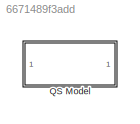
MODEL slx_6671489f3add
KIND library
CONFIG AbsTol = auto
CONFIG FixedStep = auto
CONFIG MaxStep = auto
CONFIG MinStep = auto
CONFIG RelTol = 1e-3
CONFIG SampleTimeConstraint = Unconstrained
CONFIG Solver = ode45
CONFIG SolverMode = Auto
CONFIG SolverName = ode45
CONFIG StartTime = 0.0
CONFIG StopTime = 10.0
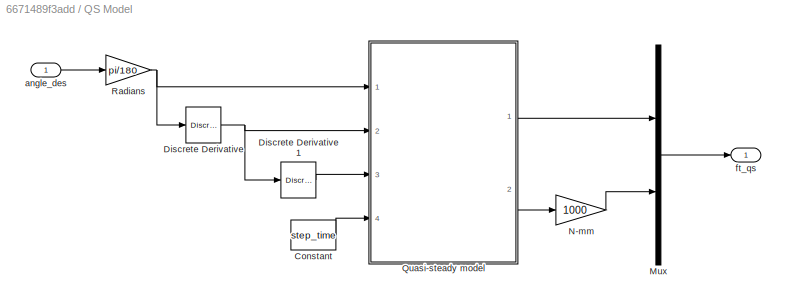
BLOCK [SubSystem] QS Model
  Ports = [1, 1]
  RequestExecContextInheritance = off
  Variant = off
BLOCK [Constant] QS Model/Constant
  Value = step_time
BLOCK [Reference] QS Model/Discrete Derivative  REF=simulink/Discrete/Discrete Derivative
  Ports = [1, 1]
  SourceBlock = simulink/Discrete/Discrete Derivative
  SourceType = Discrete Derivative
BLOCK [Reference] QS Model/Discrete Derivative1  REF=simulink/Discrete/Discrete Derivative
  Ports = [1, 1]
  SourceBlock = simulink/Discrete/Discrete Derivative
  SourceType = Discrete Derivative
BLOCK [Mux] QS Model/Mux
  DisplayOption = bar
  Inputs = 2
  Ports = [2, 1]
BLOCK [Gain] QS Model/N-mm
  Gain = 1000
  OutDataTypeStr = Inherit: Inherit via internal rule
  ParamDataTypeStr = Inherit: Inherit via internal rule
  SaturateOnIntegerOverflow = off
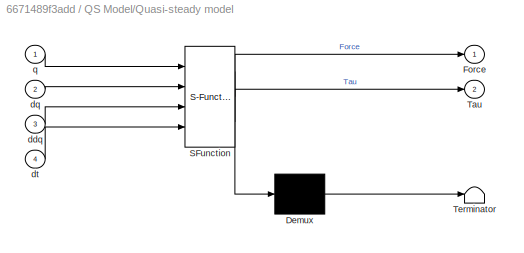
BLOCK [SubSystem] QS Model/Quasi-steady model
  ErrorFcn = Stateflow.Translate.translate
  PermitHierarchicalResolution = ExplicitOnly
  Ports = [4, 2]
  RequestExecContextInheritance = off
  SFBlockType = MATLAB Function
  TreatAsAtomicUnit = on
  Variant = off
BLOCK [Demux] QS Model/Quasi-steady model/ Demux 
  Outputs = 1
  Ports = [1, 1]
BLOCK [S-Function] QS Model/Quasi-steady model/ SFunction 
  EnableBusSupport = on
  FunctionName = sf_sfun
  PortCounts = [4 3]
  Ports = [4, 3]
  SFunctionDeploymentMode = off
  Tag = Stateflow S-Function qs_model 9
BLOCK [Terminator] QS Model/Quasi-steady model/ Terminator 
BLOCK [Outport] QS Model/Quasi-steady model/Force
  IconDisplay = Port number
BLOCK [Outport] QS Model/Quasi-steady model/Tau
  IconDisplay = Port number
  Port = 2
BLOCK [Inport] QS Model/Quasi-steady model/ddq
  IconDisplay = Port number
  Port = 3
BLOCK [Inport] QS Model/Quasi-steady model/dq
  IconDisplay = Port number
  Port = 2
BLOCK [Inport] QS Model/Quasi-steady model/dt
  IconDisplay = Port number
  Port = 4
BLOCK [Inport] QS Model/Quasi-steady model/q
  IconDisplay = Port number
BLOCK [Gain] QS Model/Radians
  Gain = pi/180
  OutDataTypeStr = Inherit: Inherit via internal rule
  ParamDataTypeStr = Inherit: Inherit via internal rule
  SaturateOnIntegerOverflow = off
BLOCK [Inport] QS Model/angle_des
  IconDisplay = Port number
  PortDimensions = 3
BLOCK [Outport] QS Model/ft_qs
  IconDisplay = Port number
LINE QS Model/Constant:1 -> QS Model/Quasi-steady model:4
LINE QS Model/Discrete Derivative1:1 -> QS Model/Quasi-steady model:3
NET QS Model/Discrete Derivative:1 -> QS Model/Discrete Derivative1:1, QS Model/Quasi-steady model:2
LINE QS Model/Mux:1 -> QS Model/ft_qs:1
LINE QS Model/N-mm:1 -> QS Model/Mux:2
LINE QS Model/Quasi-steady model:1 -> QS Model/Mux:1
LINE QS Model/Quasi-steady model:2 -> QS Model/N-mm:1
NET QS Model/Radians:1 -> QS Model/Discrete Derivative:1, QS Model/Quasi-steady model:1
LINE QS Model/angle_des:1 -> QS Model/Radians:1
note: NET lines group one-source signal fan-out (src -> all destinations, sorted); 1:1 wires keep LINE
CHART QS Model/Quasi-steady model states=1 transitions=1
  STATE_LABEL 'eML_blk_kernel()'
  STATE_LABEL 'SCRIPT:\n%#codegen\n\n%%%%%%%%%%%%%%%%%%%%%%%%%%%%%%%%%%%%%%%%%%%%%%%%%%%%%%%%%%%%%%%%%%%%%%%%%%%\n%%%%%%%%%%%%%%   Aerodynamic forces and moments calculator   %%%%%%%%%%%%%%\n%%%%%%%%%%%%%%%%%%%%%%%%%%%%%%%%%%%%%%%%%%%%%%%%%%%%%%%%%%%%%%%%%%%%%%%%%%%\n\n% This program calcuates the aerodynamic forces and moments generated by a\n% flapping wing\n\n% The aerodynamic forces and torques at each wing blade elem...<+3608ch>'
